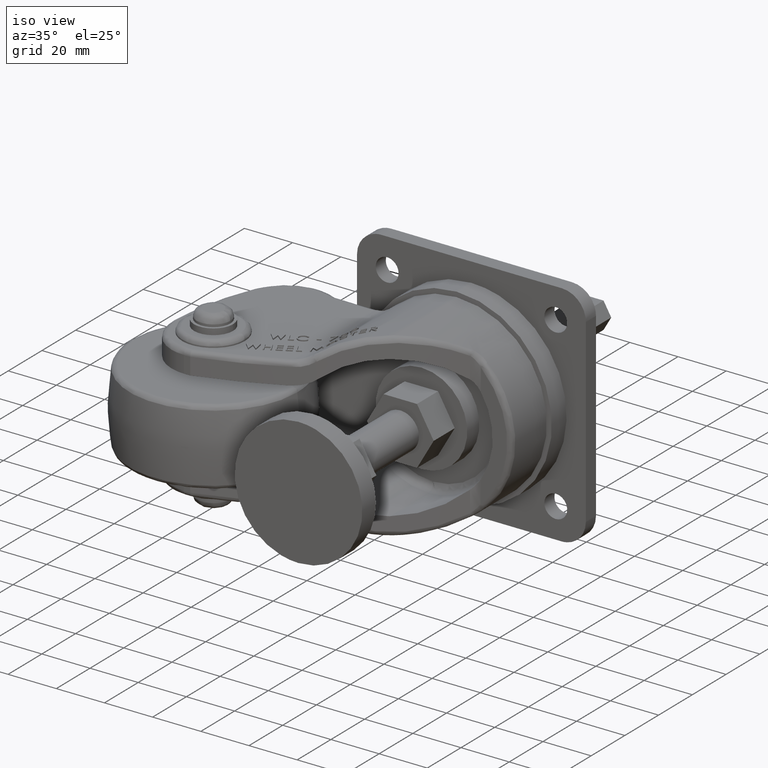
[diagram: clean part render]
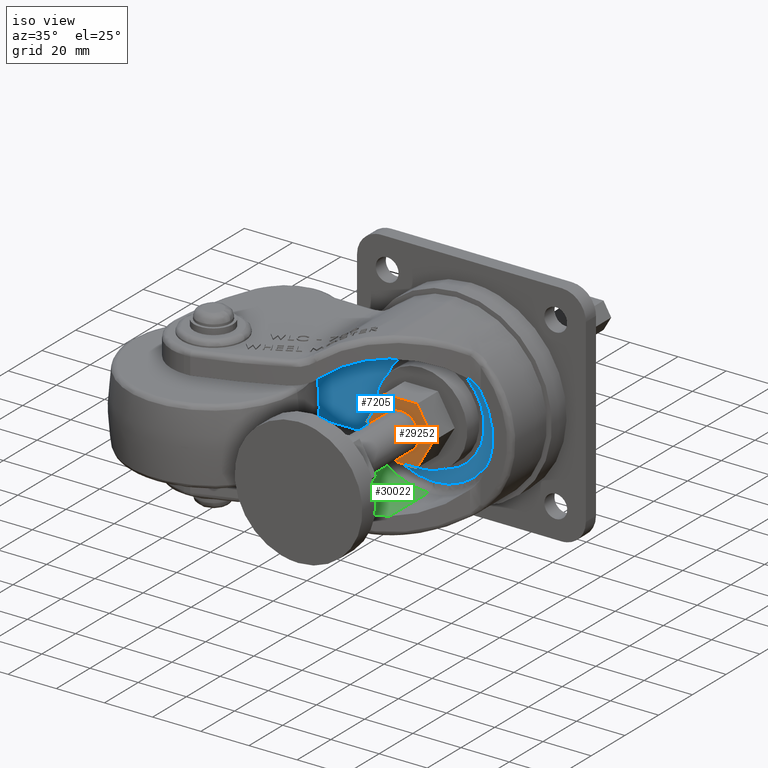
[diagram: same view with three faces highlighted in distinct colors, each labeled with its STEP entity id]
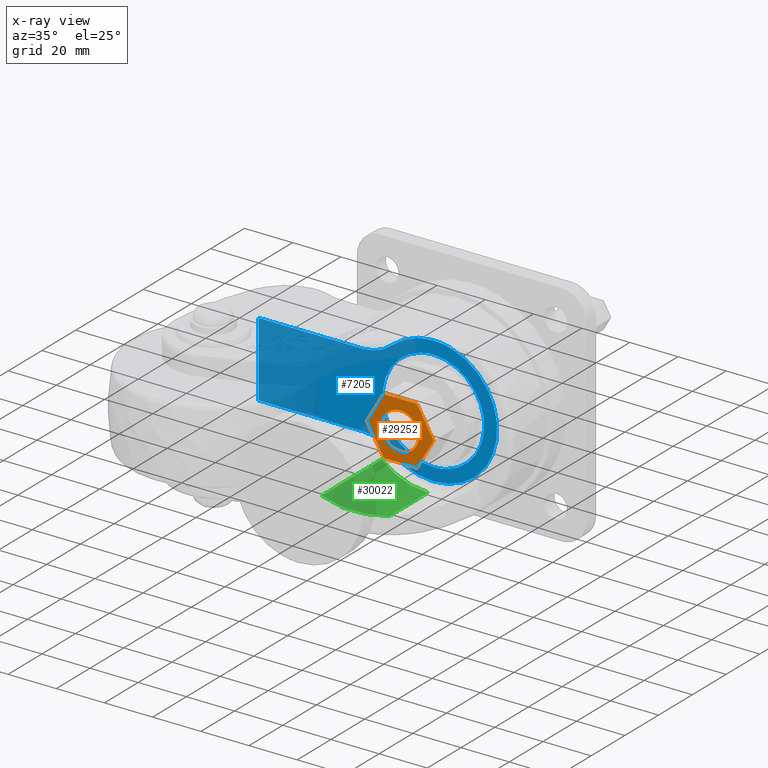
[diagram: x-ray of the same camera — body ghosted, the three highlighted faces saturated]
A machine part, iso view with three faces highlighted in distinct colors.
The next image is the same camera in x-ray (body ghosted, the three faces saturated) — at least one of them is partly hidden behind the body in this view.
Their STEP definitions:

[orange] entity #29252 — the highlighted face is a freeform B-spline surface patch.
#588 = CARTESIAN_POINT ( 'NONE',  ( 14.02268333800000022, 46.83815985700000084, 12.00000000000000000 ) ) ;
#602 = CARTESIAN_POINT ( 'NONE',  ( -13.85640645853384179, 46.83815985700000084, 0.000000000000000000 ) ) ;
#679 = CARTESIAN_POINT ( 'NONE',  ( 11.54700537800127869, 46.83815985700000084, 4.000000000000000000 ) ) ;
#1097 = CARTESIAN_POINT ( 'NONE',  ( 9.237604302401020817, 46.83815985700000084, -8.000000000000000000 ) ) ;
#1470 = B_SPLINE_CURVE_WITH_KNOTS ( 'NONE', 1,
 ( #11234, #18862 ),
 .UNSPECIFIED., .F., .F.,
 ( 2, 2 ),
 ( 0.000000000000000000, 1.000000000000000000 ),
 .UNSPECIFIED. ) ;
#2560 = VERTEX_POINT ( 'NONE', #3332 ) ;
#3225 = CARTESIAN_POINT ( 'NONE',  ( 9.237604302401020817, 46.83815985700000084, 8.000000000000000000 ) ) ;
#3332 = CARTESIAN_POINT ( 'NONE',  ( -6.928203228933590196, 46.83815985700000084, -12.00000000000000000 ) ) ;
#3483 = CARTESIAN_POINT ( 'NONE',  ( 11.54700537800127869, 46.83815985700000084, -4.000000000000000000 ) ) ;
#3587 = VERTEX_POINT ( 'NONE', #24516 ) ;
#3773 =( BOUNDED_CURVE ( )  B_SPLINE_CURVE ( 3, ( #7478, #17172, #28857, #16855 ),
 .UNSPECIFIED., .F., .F. ) 
 B_SPLINE_CURVE_WITH_KNOTS ( ( 4, 4 ),
 ( -3.141592653589795336, 0.000000000000000000 ),
 .UNSPECIFIED. ) 
 CURVE ( )  GEOMETRIC_REPRESENTATION_ITEM ( )  RATIONAL_B_SPLINE_CURVE ( ( 1.000000000000000000, 0.3333333335299309419, 0.3333333335299309419, 1.000000000000000000 ) ) 
 REPRESENTATION_ITEM ( '' )  );
#4669 = CARTESIAN_POINT ( 'NONE',  ( 15.50000000000000000, 46.83815985700000084, 7.750000000000000888 ) ) ;
#5211 = CARTESIAN_POINT ( 'NONE',  ( -6.928203228933590196, 46.83815985700000084, 12.00000000000000000 ) ) ;
#5286 = ORIENTED_EDGE ( 'NONE', *, *, #18471, .T. ) ;
#5467 = EDGE_CURVE ( 'NONE', #3587, #7559, #14193, .T. ) ;
#5968 = B_SPLINE_SURFACE_WITH_KNOTS ( 'NONE', 1, 1, ( 
 ( #25133, #20473 ),
 ( #27536, #588 ) ),
 .UNSPECIFIED., .F., .F., .F.,
 ( 2, 2 ),
 ( 2, 2 ),
 ( 0.000000000000000000, 1.000000000000000000 ),
 ( 0.000000000000000000, 1.000000000000000000 ),
 .UNSPECIFIED. ) ;
#7091 = ORIENTED_EDGE ( 'NONE', *, *, #26487, .T. ) ;
#7478 = CARTESIAN_POINT ( 'NONE',  ( -4.639314524208700181E-10, 46.83815985700000084, 7.750000002666669552 ) ) ;
#7559 = VERTEX_POINT ( 'NONE', #19305 ) ;
#7750 = B_SPLINE_CURVE_WITH_KNOTS ( 'NONE', 3,
 ( #9246, #21341, #19101, #16700 ),
 .UNSPECIFIED., .F., .F.,
 ( 4, 4 ),
 ( 0.000000000000000000, 1.000000000000000000 ),
 .UNSPECIFIED. ) ;
#7959 = EDGE_CURVE ( 'NONE', #12870, #17301, #18173, .T. ) ;
#9230 = ORIENTED_EDGE ( 'NONE', *, *, #22154, .T. ) ;
#9246 = CARTESIAN_POINT ( 'NONE',  ( -13.85640645853384179, 46.83815985700000084, 0.000000000000000000 ) ) ;
#9894 = VERTEX_POINT ( 'NONE', #11220 ) ;
#10145 = VERTEX_POINT ( 'NONE', #29712 ) ;
#11220 = CARTESIAN_POINT ( 'NONE',  ( -4.639314524208700181E-10, 46.83815985700000084, 7.750000002666669552 ) ) ;
#11234 = CARTESIAN_POINT ( 'NONE',  ( -6.928203228933590196, 46.83815985700000084, -12.00000000000000000 ) ) ;
#11876 = EDGE_CURVE ( 'NONE', #9894, #10145, #3773, .T. ) ;
#12870 = VERTEX_POINT ( 'NONE', #24026 ) ;
#14193 = B_SPLINE_CURVE_WITH_KNOTS ( 'NONE', 3,
 ( #14787, #19718, #24367, #602 ),
 .UNSPECIFIED., .F., .F.,
 ( 4, 4 ),
 ( 0.000000000000000000, 1.000000000000000000 ),
 .UNSPECIFIED. ) ;
#14787 = CARTESIAN_POINT ( 'NONE',  ( -6.928203228933590196, 46.83815985700000084, 12.00000000000000000 ) ) ;
#14830 = ORIENTED_EDGE ( 'NONE', *, *, #29241, .T. ) ;
#15867 = ORIENTED_EDGE ( 'NONE', *, *, #5467, .T. ) ;
#15887 = CARTESIAN_POINT ( 'NONE',  ( 13.85640645853384179, 46.83815985700000084, 0.000000000000000000 ) ) ;
#16700 = CARTESIAN_POINT ( 'NONE',  ( -6.928203228933590196, 46.83815985700000084, -12.00000000000000000 ) ) ;
#16855 = CARTESIAN_POINT ( 'NONE',  ( -2.119402094658419765E-09, 46.83815985700000084, -7.750000002666669552 ) ) ;
#17075 = CARTESIAN_POINT ( 'NONE',  ( 15.50000000000000178, 46.83815985700000084, -7.749999999999998224 ) ) ;
#17172 = CARTESIAN_POINT ( 'NONE',  ( -15.49999999225000558, 46.83815985700000084, 7.749999997216410641 ) ) ;
#17301 = VERTEX_POINT ( 'NONE', #22347 ) ;
#17455 = ORIENTED_EDGE ( 'NONE', *, *, #11876, .F. ) ;
#17687 = EDGE_LOOP ( 'NONE', ( #17455, #25688 ) ) ;
#17960 = ORIENTED_EDGE ( 'NONE', *, *, #7959, .T. ) ;
#18173 = B_SPLINE_CURVE_WITH_KNOTS ( 'NONE', 3,
 ( #28047, #1097, #3483, #15887 ),
 .UNSPECIFIED., .F., .F.,
 ( 4, 4 ),
 ( 0.000000000000000000, 1.000000000000000000 ),
 .UNSPECIFIED. ) ;
#18471 = EDGE_CURVE ( 'NONE', #17301, #29638, #20886, .T. ) ;
#18862 = CARTESIAN_POINT ( 'NONE',  ( 6.928203228933590196, 46.83815985700000084, -12.00000000000000000 ) ) ;
#18890 = EDGE_LOOP ( 'NONE', ( #15867, #9230, #7091, #17960, #5286, #14830 ) ) ;
#19101 = CARTESIAN_POINT ( 'NONE',  ( -9.237604302401020817, 46.83815985700000084, -8.000000000000000000 ) ) ;
#19305 = CARTESIAN_POINT ( 'NONE',  ( -13.85640645853384179, 46.83815985700000084, 0.000000000000000000 ) ) ;
#19718 = CARTESIAN_POINT ( 'NONE',  ( -9.237604302401020817, 46.83815985700000084, 8.000000000000000000 ) ) ;
#20008 = FACE_BOUND ( 'NONE', #17687, .T. ) ;
#20473 = CARTESIAN_POINT ( 'NONE',  ( 14.02268333800000022, 46.83815985700000084, -12.00000000000000000 ) ) ;
#20886 = B_SPLINE_CURVE_WITH_KNOTS ( 'NONE', 3,
 ( #22512, #679, #3225, #27783 ),
 .UNSPECIFIED., .F., .F.,
 ( 4, 4 ),
 ( 0.000000000000000000, 1.000000000000000000 ),
 .UNSPECIFIED. ) ;
#21341 = CARTESIAN_POINT ( 'NONE',  ( -11.54700537800127869, 46.83815985700000084, -4.000000000000000000 ) ) ;
#21871 = CARTESIAN_POINT ( 'NONE',  ( -4.639314524208700181E-10, 46.83815985700000084, 7.750000002666669552 ) ) ;
#22154 = EDGE_CURVE ( 'NONE', #7559, #2560, #7750, .T. ) ;
#22347 = CARTESIAN_POINT ( 'NONE',  ( 13.85640645853384179, 46.83815985700000084, 0.000000000000000000 ) ) ;
#22512 = CARTESIAN_POINT ( 'NONE',  ( 13.85640645853384179, 46.83815985700000084, 0.000000000000000000 ) ) ;
#23045 =( BOUNDED_CURVE ( )  B_SPLINE_CURVE ( 3, ( #24748, #17075, #4669, #21871 ),
 .UNSPECIFIED., .F., .F. ) 
 B_SPLINE_CURVE_WITH_KNOTS ( ( 4, 4 ),
 ( 0.000000000000000000, 1.000000000000000000 ),
 .UNSPECIFIED. ) 
 CURVE ( )  GEOMETRIC_REPRESENTATION_ITEM ( )  RATIONAL_B_SPLINE_CURVE ( ( 1.000000000000000000, 0.3333333333333333703, 0.3333333333333333703, 1.000000000000000000 ) ) 
 REPRESENTATION_ITEM ( '' )  );
#24026 = CARTESIAN_POINT ( 'NONE',  ( 6.928203228933590196, 46.83815985700000084, -12.00000000000000000 ) ) ;
#24367 = CARTESIAN_POINT ( 'NONE',  ( -11.54700537800127869, 46.83815985700000084, 4.000000000000000000 ) ) ;
#24516 = CARTESIAN_POINT ( 'NONE',  ( -6.928203228933590196, 46.83815985700000084, 12.00000000000000000 ) ) ;
#24748 = CARTESIAN_POINT ( 'NONE',  ( -2.119402094658419765E-09, 46.83815985700000084, -7.750000002666669552 ) ) ;
#25133 = CARTESIAN_POINT ( 'NONE',  ( -14.02268333800000022, 46.83815985700000084, -12.00000000000000000 ) ) ;
#25285 = FACE_OUTER_BOUND ( 'NONE', #18890, .T. ) ;
#25688 = ORIENTED_EDGE ( 'NONE', *, *, #29814, .F. ) ;
#26049 = B_SPLINE_CURVE_WITH_KNOTS ( 'NONE', 1,
 ( #31537, #5211 ),
 .UNSPECIFIED., .F., .F.,
 ( 2, 2 ),
 ( 0.000000000000000000, 1.000000000000000000 ),
 .UNSPECIFIED. ) ;
#26487 = EDGE_CURVE ( 'NONE', #2560, #12870, #1470, .T. ) ;
#27536 = CARTESIAN_POINT ( 'NONE',  ( -14.02268333800000022, 46.83815985700000084, 12.00000000000000000 ) ) ;
#27783 = CARTESIAN_POINT ( 'NONE',  ( 6.928203228933590196, 46.83815985700000084, 12.00000000000000000 ) ) ;
#28047 = CARTESIAN_POINT ( 'NONE',  ( 6.928203228933590196, 46.83815985700000084, -12.00000000000000000 ) ) ;
#28857 = CARTESIAN_POINT ( 'NONE',  ( -15.49999999403730833, 46.83815985700000084, -7.749999993641800700 ) ) ;
#29241 = EDGE_CURVE ( 'NONE', #29638, #3587, #26049, .T. ) ;
#29252 = ADVANCED_FACE ( 'NONE', ( #20008, #25285 ), #5968, .F. ) ;
#29638 = VERTEX_POINT ( 'NONE', #29727 ) ;
#29712 = CARTESIAN_POINT ( 'NONE',  ( -2.119402094658419765E-09, 46.83815985700000084, -7.750000002666669552 ) ) ;
#29727 = CARTESIAN_POINT ( 'NONE',  ( 6.928203228933590196, 46.83815985700000084, 12.00000000000000000 ) ) ;
#29814 = EDGE_CURVE ( 'NONE', #10145, #9894, #23045, .T. ) ;
#31537 = CARTESIAN_POINT ( 'NONE',  ( 6.928203228933590196, 46.83815985700000084, 12.00000000000000000 ) ) ;

[blue] entity #7205 — the highlighted face is a freeform B-spline surface patch.
#411 = B_SPLINE_CURVE_WITH_KNOTS ( 'NONE', 1,
 ( #28982, #2659 ),
 .UNSPECIFIED., .F., .F.,
 ( 2, 2 ),
 ( 0.000000000000000000, 1.000000000000000000 ),
 .UNSPECIFIED. ) ;
#451 = VERTEX_POINT ( 'NONE', #20934 ) ;
#939 = FACE_OUTER_BOUND ( 'NONE', #14410, .T. ) ;
#956 = ORIENTED_EDGE ( 'NONE', *, *, #25416, .T. ) ;
#1095 = CARTESIAN_POINT ( 'NONE',  ( -72.59971590700000377, 66.50000000000000000, 26.81800000000000139 ) ) ;
#1103 = CARTESIAN_POINT ( 'NONE',  ( 23.81853991347565369, 66.50000000000001421, -11.74479524342667247 ) ) ;
#1578 = CARTESIAN_POINT ( 'NONE',  ( -17.44333441362545045, 66.50000000008151346, 19.94943820333005036 ) ) ;
#1615 = CARTESIAN_POINT ( 'NONE',  ( -29.29163704846574845, 66.50000000004079936, 15.49999999904220083 ) ) ;
#1753 = CARTESIAN_POINT ( 'NONE',  ( -19.12733481356705667, 66.50000000000001421, -18.60521214544667501 ) ) ;
#1876 = B_SPLINE_SURFACE_WITH_KNOTS ( 'NONE', 1, 1, ( 
 ( #1095, #6196 ),
 ( #25792, #5877 ) ),
 .UNSPECIFIED., .F., .F., .F.,
 ( 2, 2 ),
 ( 2, 2 ),
 ( 0.000000000000000000, 1.000000000000000000 ),
 ( 0.000000000000000000, 1.000000000000000000 ),
 .UNSPECIFIED. ) ;
#1892 = CARTESIAN_POINT ( 'NONE',  ( 3.467431380270380004, 66.49999999999998579, 26.32945070131201959 ) ) ;
#1936 = B_SPLINE_CURVE_WITH_KNOTS ( 'NONE', 3,
 ( #21175, #30934, #28226, #28546, #26139, #11635, #6379, #9401, #9243, #19098 ),
 .UNSPECIFIED., .F., .F.,
 ( 4, 2, 2, 2, 4 ),
 ( 0.000000000000000000, 0.1796192921321382585, 0.3592385842642765170, 0.5388578763964148033, 0.7184771685285530340 ),
 .UNSPECIFIED. ) ;
#2071 = CARTESIAN_POINT ( 'NONE',  ( -25.01260960149381418, 66.49999999999998579, -15.98264661749066917 ) ) ;
#2072 = CARTESIAN_POINT ( 'NONE',  ( 21.10000001814540838, 66.50000000000001421, -2.764204061930641831 ) ) ;
#2341 = VERTEX_POINT ( 'NONE', #23442 ) ;
#2659 = CARTESIAN_POINT ( 'NONE',  ( -72.59971590297909927, 66.50000000166089364, -15.50000000491490049 ) ) ;
#2797 = CARTESIAN_POINT ( 'NONE',  ( -12.96536576748899527, 66.50000000000001421, -16.87454062071068961 ) ) ;
#2996 = CARTESIAN_POINT ( 'NONE',  ( -12.28908649596468017, 66.50000000000000000, -23.69201514659466312 ) ) ;
#3028 = CARTESIAN_POINT ( 'NONE',  ( 26.32945068101001240, 66.50000000000000000, -3.467431396982657343 ) ) ;
#3492 = CARTESIAN_POINT ( 'NONE',  ( 11.74479520394392296, 66.49999999999998579, -23.81853986030932901 ) ) ;
#3578 = B_SPLINE_CURVE_WITH_KNOTS ( 'NONE', 3,
 ( #29474, #21795, #2996, #7634, #12706, #22429 ),
 .UNSPECIFIED., .F., .F.,
 ( 4, 2, 4 ),
 ( 0.000000000000000000, 0.3592385842608190050, 0.7184771685216380099 ),
 .UNSPECIFIED. ) ;
#3626 = VERTEX_POINT ( 'NONE', #7631 ) ;
#3646 = CARTESIAN_POINT ( 'NONE',  ( 21.06957743414927720, 66.50000000000000000, 16.16588886243466661 ) ) ;
#4459 = EDGE_CURVE ( 'NONE', #30968, #451, #3578, .T. ) ;
#4559 = B_SPLINE_CURVE_WITH_KNOTS ( 'NONE', 3,
 ( #24473, #9377, #5180, #26868, #2797, #29578, #12505, #10125, #19827, #7739, #17430, #24790, #22383, #20749, #5957, #30048, #20285, #10586 ),
 .UNSPECIFIED., .F., .F.,
 ( 4, 2, 2, 2, 2, 2, 2, 2, 4 ),
 ( 0.000000000000000000, 0.3926990816987245836, 0.7853981633974490562, 1.178097245096173529, 1.570796326794898112, 1.963495408493622474, 2.356194490192347057, 2.748893571891070753, 3.141592653589795336 ),
 .UNSPECIFIED. ) ;
#5180 = CARTESIAN_POINT ( 'NONE',  ( -5.520828837499231589, 66.50000000000000000, -20.55167334840402305 ) ) ;
#5203 = ORIENTED_EDGE ( 'NONE', *, *, #17362, .T. ) ;
#5517 = VERTEX_POINT ( 'NONE', #15091 ) ;
#5877 = CARTESIAN_POINT ( 'NONE',  ( 27.09459829500000083, 66.50000000000000000, -26.81800000000000139 ) ) ;
#5891 = CARTESIAN_POINT ( 'NONE',  ( -2.469144102142569922E-09, 66.50000000008151346, 26.49999999653990201 ) ) ;
#5957 = CARTESIAN_POINT ( 'NONE',  ( -10.62841207404592581, 66.50000000000001421, 18.43604309296931376 ) ) ;
#6049 = CARTESIAN_POINT ( 'NONE',  ( 25.14707551640842453, 66.50000000000000000, 8.537426663597290855 ) ) ;
#6071 = EDGE_LOOP ( 'NONE', ( #18454, #22285 ) ) ;
#6196 = CARTESIAN_POINT ( 'NONE',  ( 27.09459829500000083, 66.50000000000000000, 26.81800000000000139 ) ) ;
#6379 = CARTESIAN_POINT ( 'NONE',  ( -25.01260953503093276, 66.50000000000000000, 15.98264658173333785 ) ) ;
#6380 = CARTESIAN_POINT ( 'NONE',  ( -3.732234895185195434E-09, 66.50000000000000000, 21.10000000757599992 ) ) ;
#6693 = CARTESIAN_POINT ( 'NONE',  ( -17.44333441362545045, 66.50000000008151346, -19.94943820333005036 ) ) ;
#7205 = ADVANCED_FACE ( 'NONE', ( #939, #13208 ), #1876, .T. ) ;
#7631 = CARTESIAN_POINT ( 'NONE',  ( -3.732234895185195434E-09, 66.50000000000000000, 21.10000000757599992 ) ) ;
#7634 = CARTESIAN_POINT ( 'NONE',  ( -6.343674369676421954, 66.49999999999998579, -25.92471820103734004 ) ) ;
#7739 = CARTESIAN_POINT ( 'NONE',  ( -21.10000003296026705, 66.50000000000000000, 2.764204061930633394 ) ) ;
#7880 = ORIENTED_EDGE ( 'NONE', *, *, #22370, .T. ) ;
#7954 = VERTEX_POINT ( 'NONE', #27734 ) ;
#8072 = ORIENTED_EDGE ( 'NONE', *, *, #24989, .T. ) ;
#8596 = CARTESIAN_POINT ( 'NONE',  ( 22.99831202167502298, 66.50000000000001421, -13.27933343243464037 ) ) ;
#8754 = CARTESIAN_POINT ( 'NONE',  ( -6.343674635527949413, 66.50000000000000000, 25.92471834406666886 ) ) ;
#8778 = B_SPLINE_CURVE_WITH_KNOTS ( 'NONE', 3,
 ( #5891, #28061, #8754, #13221, #18453, #1578 ),
 .UNSPECIFIED., .F., .F.,
 ( 4, 2, 4 ),
 ( 0.000000000000000000, 0.3592385842608190050, 0.7184771685216380099 ),
 .UNSPECIFIED. ) ;
#8923 = CARTESIAN_POINT ( 'NONE',  ( 12.96536548682260026, 66.49999999999998579, 16.87454062071068250 ) ) ;
#9243 = CARTESIAN_POINT ( 'NONE',  ( -28.21101438688291196, 66.50000000000000000, 15.49999999636000325 ) ) ;
#9377 = CARTESIAN_POINT ( 'NONE',  ( -2.764204052571942682, 66.50000000000000000, -21.10000002272799691 ) ) ;
#9401 = CARTESIAN_POINT ( 'NONE',  ( -27.13908433870676973, 66.50000000000001421, 15.59652931343467053 ) ) ;
#9402 = CARTESIAN_POINT ( 'NONE',  ( 20.55167328125787662, 66.50000000000000000, -5.520828802822578929 ) ) ;
#9565 = CARTESIAN_POINT ( 'NONE',  ( 2.764204037756956556, 66.50000000000000000, -21.10000002272800401 ) ) ;
#10100 = ORIENTED_EDGE ( 'NONE', *, *, #17680, .T. ) ;
#10125 = CARTESIAN_POINT ( 'NONE',  ( -20.55167329607270332, 66.50000000000000000, -5.520828802822663306 ) ) ;
#10509 = CARTESIAN_POINT ( 'NONE',  ( 8.537426803070596648, 66.50000000000000000, -25.14707540353067472 ) ) ;
#10586 = CARTESIAN_POINT ( 'NONE',  ( -3.732234895185195434E-09, 66.50000000000000000, 21.10000000757599992 ) ) ;
#10827 = CARTESIAN_POINT ( 'NONE',  ( 26.49999997082171532, 66.50000000000000000, 1.735815360165313459 ) ) ;
#10979 = CARTESIAN_POINT ( 'NONE',  ( 16.16588894254570619, 66.50000000000000000, 21.06957736171200679 ) ) ;
#11635 = CARTESIAN_POINT ( 'NONE',  ( -23.97517049611921536, 66.50000000000000000, 16.26912863310533908 ) ) ;
#11791 = CARTESIAN_POINT ( 'NONE',  ( -23.97517049611920825, 66.50000000000000000, -16.26912866886267395 ) ) ;
#11792 = CARTESIAN_POINT ( 'NONE',  ( 12.96536575267412594, 66.50000000000001421, -16.87454047768139276 ) ) ;
#11909 = VERTEX_POINT ( 'NONE', #26287 ) ;
#12106 = CARTESIAN_POINT ( 'NONE',  ( 5.520828822684319626, 66.50000000000000000, -20.55167320537470488 ) ) ;
#12206 = ORIENTED_EDGE ( 'NONE', *, *, #16535, .T. ) ;
#12505 = CARTESIAN_POINT ( 'NONE',  ( -18.43604297404424486, 66.50000000000000000, -10.62841201732933527 ) ) ;
#12690 = CARTESIAN_POINT ( 'NONE',  ( -72.59971590297909927, 66.50000000166089364, -15.50000000491490049 ) ) ;
#12706 = CARTESIAN_POINT ( 'NONE',  ( -3.175408803811106573, 66.50000000000000000, -26.49999998685600744 ) ) ;
#12741 = CARTESIAN_POINT ( 'NONE',  ( 13.27933338870489699, 66.50000000000001421, 22.99831204545600016 ) ) ;
#12903 = CARTESIAN_POINT ( 'NONE',  ( -29.29163704846574845, 66.50000000004079936, -15.49999999904220083 ) ) ;
#13208 = FACE_BOUND ( 'NONE', #6071, .T. ) ;
#13217 = CARTESIAN_POINT ( 'NONE',  ( 16.16588894254571684, 66.50000000000000000, -21.06957736171199613 ) ) ;
#13221 = CARTESIAN_POINT ( 'NONE',  ( -12.28908623011315449, 66.49999999999998579, 23.69201500356532719 ) ) ;
#13367 = CARTESIAN_POINT ( 'NONE',  ( 19.96573663171752244, 66.49999999999998579, 17.51092291077063479 ) ) ;
#13845 = CARTESIAN_POINT ( 'NONE',  ( 1.735815315151411520, 66.50000000000000000, 26.49999998685601099 ) ) ;
#14410 = EDGE_LOOP ( 'NONE', ( #7880, #20578, #29909, #12206, #10100, #8072, #5203, #956 ) ) ;
#14558 = B_SPLINE_CURVE_WITH_KNOTS ( 'NONE', 1,
 ( #12690, #20775 ),
 .UNSPECIFIED., .F., .F.,
 ( 2, 2 ),
 ( 0.000000000000000000, 1.000000000000000000 ),
 .UNSPECIFIED. ) ;
#14649 = CARTESIAN_POINT ( 'NONE',  ( 21.10000001814540127, 66.50000000000000000, 2.764204061930640055 ) ) ;
#15091 = CARTESIAN_POINT ( 'NONE',  ( -72.59971590297909927, 66.50000000166089364, 15.50000000491490049 ) ) ;
#15276 = CARTESIAN_POINT ( 'NONE',  ( -2.469144102142569922E-09, 66.50000000008151346, -26.49999999653990201 ) ) ;
#15435 = CARTESIAN_POINT ( 'NONE',  ( 25.65216924900784079, 66.50000000000000000, -6.872355667745346786 ) ) ;
#15590 = CARTESIAN_POINT ( 'NONE',  ( 1.735815315151493010, 66.50000000000000000, -26.49999998685600744 ) ) ;
#15743 = CARTESIAN_POINT ( 'NONE',  ( 23.81853978054987309, 66.49999999999998579, 11.74479524342671866 ) ) ;
#15820 = B_SPLINE_CURVE_WITH_KNOTS ( 'NONE', 3,
 ( #6380, #16066, #21018, #30776, #8923, #18622, #30935, #21500, #14649, #2072, #9402, #31257, #21970, #11792, #19732, #12106, #9565, #26778 ),
 .UNSPECIFIED., .F., .F.,
 ( 4, 2, 2, 2, 2, 2, 2, 2, 4 ),
 ( 0.000000000000000000, 0.3926990816987243060, 0.7853981633974488341, 1.178097245096173307, 1.570796326794898112, 1.963495408493622474, 2.356194490192346613, 2.748893571891070753, 3.141592653589795336 ),
 .UNSPECIFIED. ) ;
#15893 = CARTESIAN_POINT ( 'NONE',  ( 13.27933338870488100, 66.49999999999998579, -22.99831204545601082 ) ) ;
#16049 = CARTESIAN_POINT ( 'NONE',  ( -2.469144102142569922E-09, 66.50000000008151346, 26.49999999653990201 ) ) ;
#16066 = CARTESIAN_POINT ( 'NONE',  ( 2.764204037757084897, 66.50000000000000000, 21.10000002272800401 ) ) ;
#16381 = CARTESIAN_POINT ( 'NONE',  ( -29.29163704846574845, 66.50000000004079936, -15.49999999904220083 ) ) ;
#16535 = EDGE_CURVE ( 'NONE', #451, #27881, #18326, .T. ) ;
#17362 = EDGE_CURVE ( 'NONE', #7954, #5517, #31275, .T. ) ;
#17430 = CARTESIAN_POINT ( 'NONE',  ( -20.55167329607272464, 66.50000000000001421, 5.520828802822586923 ) ) ;
#17554 = VERTEX_POINT ( 'NONE', #12903 ) ;
#17680 = EDGE_CURVE ( 'NONE', #27881, #11909, #8778, .T. ) ;
#17824 = CARTESIAN_POINT ( 'NONE',  ( 19.96573649879175960, 66.50000000000000000, -17.51092291077065966 ) ) ;
#18140 = CARTESIAN_POINT ( 'NONE',  ( 26.32945081393576814, 66.50000000000000000, 3.467431396982650238 ) ) ;
#18326 = B_SPLINE_CURVE_WITH_KNOTS ( 'NONE', 3,
 ( #15276, #15590, #25339, #25026, #10509, #3492, #15893, #13217, #20211, #17824, #22940, #8596, #1103, #27582, #15435, #3028, #25186, #10827, #18140, #27898, #6049, #15743, #25494, #3646, #13367, #23098, #10979, #12741, #22465, #28528, #28207, #1892, #13845, #16049 ),
 .UNSPECIFIED., .F., .F.,
 ( 4, 2, 2, 2, 2, 2, 2, 2, 2, 2, 2, 2, 2, 2, 2, 2, 4 ),
 ( 0.000000000000000000, 0.1963495408493621530, 0.3926990816987243060, 0.5890486225480864313, 0.7853981633974486121, 0.9817477042468109039, 1.178097245096172863, 1.374446785945535154, 1.570796326794897224, 1.767145867644259516, 1.963495408493621808, 2.159844949342983877, 2.356194490192345725, 2.552544031041708017, 2.748893571891070753, 2.945243112740433045, 3.141592653589795336 ),
 .UNSPECIFIED. ) ;
#18453 = CARTESIAN_POINT ( 'NONE',  ( -15.05285803396271582, 66.50000000000000000, 22.03961624573865663 ) ) ;
#18454 = ORIENTED_EDGE ( 'NONE', *, *, #28256, .T. ) ;
#18622 = CARTESIAN_POINT ( 'NONE',  ( 16.87454065269486847, 66.50000000000000000, 12.96536557710531312 ) ) ;
#18974 = VERTEX_POINT ( 'NONE', #23267 ) ;
#19098 = CARTESIAN_POINT ( 'NONE',  ( -29.29163704846574845, 66.50000000004079936, 15.49999999904220083 ) ) ;
#19419 = B_SPLINE_CURVE_WITH_KNOTS ( 'NONE', 3,
 ( #16381, #21017, #25983, #2071, #11791, #26296, #23433, #1753, #31099, #6693 ),
 .UNSPECIFIED., .F., .F.,
 ( 4, 2, 2, 2, 4 ),
 ( 0.000000000000000000, 0.1796192921321382585, 0.3592385842642765170, 0.5388578763964148033, 0.7184771685285530340 ),
 .UNSPECIFIED. ) ;
#19732 = CARTESIAN_POINT ( 'NONE',  ( 10.62841205923106713, 66.50000000000000000, -18.43604309296931376 ) ) ;
#19827 = CARTESIAN_POINT ( 'NONE',  ( -21.10000003296026705, 66.50000000000001421, -2.764204061930632950 ) ) ;
#20211 = CARTESIAN_POINT ( 'NONE',  ( 17.51092299076718461, 66.50000000000000000, -19.96573650300533487 ) ) ;
#20285 = CARTESIAN_POINT ( 'NONE',  ( -2.764204052571814341, 66.50000000000000000, 21.10000002272799691 ) ) ;
#20578 = ORIENTED_EDGE ( 'NONE', *, *, #24948, .T. ) ;
#20718 = CARTESIAN_POINT ( 'NONE',  ( -72.59971590297909927, 66.50000000166089364, 15.50000000491490049 ) ) ;
#20749 = CARTESIAN_POINT ( 'NONE',  ( -12.96536550163746782, 66.50000000000001421, 16.87454047768138565 ) ) ;
#20775 = CARTESIAN_POINT ( 'NONE',  ( -29.29163704846574845, 66.50000000004079936, -15.49999999904220083 ) ) ;
#20934 = CARTESIAN_POINT ( 'NONE',  ( -2.469144102142569922E-09, 66.50000000008151346, -26.49999999653990201 ) ) ;
#21017 = CARTESIAN_POINT ( 'NONE',  ( -28.21101438688290486, 66.50000000000000000, -15.49999999636000325 ) ) ;
#21018 = CARTESIAN_POINT ( 'NONE',  ( 5.520828822684377357, 66.50000000000001421, 20.55167334840400883 ) ) ;
#21175 = CARTESIAN_POINT ( 'NONE',  ( -17.44333441362545045, 66.50000000008151346, 19.94943820333005036 ) ) ;
#21500 = CARTESIAN_POINT ( 'NONE',  ( 20.55167328125784820, 66.50000000000000000, 5.520828802822657977 ) ) ;
#21795 = CARTESIAN_POINT ( 'NONE',  ( -15.05285803396270161, 66.50000000000000000, -22.03961624573866374 ) ) ;
#21970 = CARTESIAN_POINT ( 'NONE',  ( 16.87454038684334634, 66.50000000000001421, -12.96536572013461530 ) ) ;
#22285 = ORIENTED_EDGE ( 'NONE', *, *, #30434, .T. ) ;
#22370 = EDGE_CURVE ( 'NONE', #18974, #17554, #14558, .T. ) ;
#22383 = CARTESIAN_POINT ( 'NONE',  ( -16.87454066750972714, 66.50000000000001421, 12.96536572013461708 ) ) ;
#22429 = CARTESIAN_POINT ( 'NONE',  ( -2.469144102142569922E-09, 66.50000000008151346, -26.49999999653990201 ) ) ;
#22465 = CARTESIAN_POINT ( 'NONE',  ( 11.74479533686969646, 66.50000000000000000, 23.81853986030932191 ) ) ;
#22940 = CARTESIAN_POINT ( 'NONE',  ( 21.06957743414924522, 66.50000000000000000, -16.16588893394936122 ) ) ;
#23098 = CARTESIAN_POINT ( 'NONE',  ( 17.51092285784141467, 66.50000000000001421, 19.96573650300536684 ) ) ;
#23267 = CARTESIAN_POINT ( 'NONE',  ( -72.59971590297909927, 66.50000000166089364, -15.50000000491490049 ) ) ;
#23433 = CARTESIAN_POINT ( 'NONE',  ( -20.98232152910498272, 66.50000000000000000, -17.49615597240133624 ) ) ;
#23442 = CARTESIAN_POINT ( 'NONE',  ( -8.239387221415520312E-09, 66.50000000000000000, -21.10000000000000142 ) ) ;
#24473 = CARTESIAN_POINT ( 'NONE',  ( -8.239387221415520312E-09, 66.50000000000000000, -21.10000000000000142 ) ) ;
#24790 = CARTESIAN_POINT ( 'NONE',  ( -18.43604297404421288, 66.50000000000000000, 10.62841201732941165 ) ) ;
#24948 = EDGE_CURVE ( 'NONE', #17554, #30968, #19419, .T. ) ;
#24989 = EDGE_CURVE ( 'NONE', #11909, #7954, #1936, .T. ) ;
#25008 = CARTESIAN_POINT ( 'NONE',  ( -2.469144102142569922E-09, 66.50000000008151346, 26.49999999653990201 ) ) ;
#25026 = CARTESIAN_POINT ( 'NONE',  ( 6.872355629275468836, 66.50000000000000000, -25.65216911974933467 ) ) ;
#25186 = CARTESIAN_POINT ( 'NONE',  ( 26.49999997082172243, 66.50000000000000000, -1.735815360165313903 ) ) ;
#25339 = CARTESIAN_POINT ( 'NONE',  ( 3.467431380270455055, 66.50000000000000000, -26.32945077282667867 ) ) ;
#25416 = EDGE_CURVE ( 'NONE', #5517, #18974, #411, .T. ) ;
#25494 = CARTESIAN_POINT ( 'NONE',  ( 22.99831202167498745, 66.50000000000000000, 13.27933350394932788 ) ) ;
#25792 = CARTESIAN_POINT ( 'NONE',  ( -72.59971590700000377, 66.50000000000000000, -26.81800000000000139 ) ) ;
#25983 = CARTESIAN_POINT ( 'NONE',  ( -27.13908427224389541, 66.50000000000000000, -15.59652927767733743 ) ) ;
#26139 = CARTESIAN_POINT ( 'NONE',  ( -21.95188874537087287, 66.50000000000000000, 17.02893935575067275 ) ) ;
#26287 = CARTESIAN_POINT ( 'NONE',  ( -17.44333441362545045, 66.50000000008151346, 19.94943820333005036 ) ) ;
#26296 = CARTESIAN_POINT ( 'NONE',  ( -21.95188874537087642, 66.50000000000000000, -17.02893931999333432 ) ) ;
#26778 = CARTESIAN_POINT ( 'NONE',  ( -8.239387221415520312E-09, 66.50000000000000000, -21.10000000000000142 ) ) ;
#26868 = CARTESIAN_POINT ( 'NONE',  ( -10.62841207404587074, 66.50000000000001421, -18.43604294993999204 ) ) ;
#27582 = CARTESIAN_POINT ( 'NONE',  ( 25.14707538348265459, 66.50000000000001421, -8.537426663597329934 ) ) ;
#27734 = CARTESIAN_POINT ( 'NONE',  ( -29.29163704846574845, 66.50000000004079936, 15.49999999904220083 ) ) ;
#27881 = VERTEX_POINT ( 'NONE', #25008 ) ;
#27898 = CARTESIAN_POINT ( 'NONE',  ( 25.65216911608206729, 66.50000000000000000, 6.872355667745353003 ) ) ;
#28061 = CARTESIAN_POINT ( 'NONE',  ( -3.175408803811117231, 66.50000000000000000, 26.49999998685599678 ) ) ;
#28207 = CARTESIAN_POINT ( 'NONE',  ( 6.872355629275538114, 66.50000000000000000, 25.65216919126398665 ) ) ;
#28226 = CARTESIAN_POINT ( 'NONE',  ( -19.12733474710418236, 66.50000000000000000, 18.60521210968934014 ) ) ;
#28256 = EDGE_CURVE ( 'NONE', #3626, #2341, #15820, .T. ) ;
#28528 = CARTESIAN_POINT ( 'NONE',  ( 8.537426670144826701, 66.50000000000000000, 25.14707540353068538 ) ) ;
#28546 = CARTESIAN_POINT ( 'NONE',  ( -20.98232159556785703, 66.49999999999998579, 17.49615600815867111 ) ) ;
#28982 = CARTESIAN_POINT ( 'NONE',  ( -72.59971590297909927, 66.50000000166089364, 15.50000000491490049 ) ) ;
#29474 = CARTESIAN_POINT ( 'NONE',  ( -17.44333441362545045, 66.50000000008151346, -19.94943820333005036 ) ) ;
#29578 = CARTESIAN_POINT ( 'NONE',  ( -16.87454040165820501, 66.50000000000002842, -12.96536557710531490 ) ) ;
#29909 = ORIENTED_EDGE ( 'NONE', *, *, #4459, .T. ) ;
#30048 = CARTESIAN_POINT ( 'NONE',  ( -5.520828837499179187, 66.50000000000000000, 20.55167320537469422 ) ) ;
#30434 = EDGE_CURVE ( 'NONE', #2341, #3626, #4559, .T. ) ;
#30445 = CARTESIAN_POINT ( 'NONE',  ( -17.44333441362545045, 66.50000000008151346, -19.94943820333005036 ) ) ;
#30776 = CARTESIAN_POINT ( 'NONE',  ( 10.62841205923101029, 66.49999999999997158, 18.43604294993999559 ) ) ;
#30934 = CARTESIAN_POINT ( 'NONE',  ( -18.25683689461601134, 66.50000000000000000, 19.23813019353866594 ) ) ;
#30935 = CARTESIAN_POINT ( 'NONE',  ( 18.43604295922938618, 66.50000000000000000, 10.62841201732934415 ) ) ;
#30968 = VERTEX_POINT ( 'NONE', #30445 ) ;
#31099 = CARTESIAN_POINT ( 'NONE',  ( -18.25683689461600778, 66.50000000000000000, -19.23813019353866949 ) ) ;
#31257 = CARTESIAN_POINT ( 'NONE',  ( 18.43604295922935776, 66.50000000000001421, -10.62841201732941521 ) ) ;
#31275 = B_SPLINE_CURVE_WITH_KNOTS ( 'NONE', 1,
 ( #1615, #20718 ),
 .UNSPECIFIED., .F., .F.,
 ( 2, 2 ),
 ( 0.000000000000000000, 1.000000000000000000 ),
 .UNSPECIFIED. ) ;

[green] entity #30022 — the highlighted face is a freeform B-spline surface patch.
#2075 = CARTESIAN_POINT ( 'NONE',  ( -16.87064894934865933, 29.28295021711289792, -24.20426604047095154 ) ) ;
#2082 = FACE_OUTER_BOUND ( 'NONE', #2651, .T. ) ;
#2651 = EDGE_LOOP ( 'NONE', ( #10391, #20416, #31175, #27912 ) ) ;
#2861 = CARTESIAN_POINT ( 'NONE',  ( -10.21942393195946508, 33.35865938739124203, -27.67343583668343499 ) ) ;
#2958 = EDGE_CURVE ( 'NONE', #18386, #13616, #26120, .T. ) ;
#3748 = B_SPLINE_CURVE_WITH_KNOTS ( 'NONE', 1,
 ( #26884, #9829 ),
 .UNSPECIFIED., .F., .F.,
 ( 2, 2 ),
 ( -1.000000000000000000, 0.000000000000000000 ),
 .UNSPECIFIED. ) ;
#3985 = CARTESIAN_POINT ( 'NONE',  ( -10.77797617828908194, 33.00227977491186948, -27.46225751909072699 ) ) ;
#4149 = CARTESIAN_POINT ( 'NONE',  ( -19.41805151298797227, 63.50000000000000000, -22.20786517067648091 ) ) ;
#4618 = CARTESIAN_POINT ( 'NONE',  ( -12.13329473170531969, 32.14869322656774386, -26.89302837687790060 ) ) ;
#4936 = CARTESIAN_POINT ( 'NONE',  ( -5.038769696362772166, 36.78811384121315342, -29.06649200212829243 ) ) ;
#5098 = CARTESIAN_POINT ( 'NONE',  ( -5.081032246668375052, 36.75919128247592482, -29.05913459426213663 ) ) ;
#5403 = CARTESIAN_POINT ( 'NONE',  ( -6.751583545460270841, 35.62786897883905368, -28.72033872442299085 ) ) ;
#5825 = CARTESIAN_POINT ( 'NONE',  ( -7.221361458575347392, 63.50000000000000000, -29.49999999703775444 ) ) ;
#5931 = CARTESIAN_POINT ( 'NONE',  ( -6.050551141202269869E-09, 63.50000000069090333, -29.50000000006114576 ) ) ;
#7179 = CARTESIAN_POINT ( 'NONE',  ( -7.174367809228586523, 35.34567440991710896, -28.61756730093616241 ) ) ;
#7336 = CARTESIAN_POINT ( 'NONE',  ( -8.427009394285681410, 34.51620338076592276, -28.28395940124796581 ) ) ;
#9084 = CARTESIAN_POINT ( 'NONE',  ( -19.41805150297594906, 27.81522370650059628, -22.20786517049925024 ) ) ;
#9253 = CARTESIAN_POINT ( 'NONE',  ( -13.98174570444486697, 63.50000000000000000, -26.96124715581351339 ) ) ;
#9270 =( BOUNDED_CURVE ( )  B_SPLINE_CURVE ( 3, ( #22407, #5825, #24814, #27209 ),
 .UNSPECIFIED., .F., .F. ) 
 B_SPLINE_CURVE_WITH_KNOTS ( ( 4, 4 ),
 ( -0.7184771684989590401, 0.000000000000000000 ),
 .UNSPECIFIED. ) 
 CURVE ( )  GEOMETRIC_REPRESENTATION_ITEM ( )  RATIONAL_B_SPLINE_CURVE ( ( 1.000000000000000000, 0.9574431863963452916, 0.9574431863963452916, 1.000000000000000000 ) ) 
 REPRESENTATION_ITEM ( '' )  );
#9405 = CARTESIAN_POINT ( 'NONE',  ( -14.14282786451954621, 30.90940020062025440, -25.90392815830978890 ) ) ;
#9721 = CARTESIAN_POINT ( 'NONE',  ( -9.241120940767030945, 33.98603959815127240, -28.02782778214323756 ) ) ;
#9829 = CARTESIAN_POINT ( 'NONE',  ( -19.41805150297594906, 27.81522370650059628, -22.20786517049925024 ) ) ;
#10033 = CARTESIAN_POINT ( 'NONE',  ( -10.05888730020589783, 33.46150634623481324, -27.73209312817103722 ) ) ;
#10391 = ORIENTED_EDGE ( 'NONE', *, *, #10699, .T. ) ;
#10699 = EDGE_CURVE ( 'NONE', #18386, #19243, #9270, .T. ) ;
#11164 = CARTESIAN_POINT ( 'NONE',  ( -2.462020410062754750E-08, 40.35278656966605126, -29.49999999862954780 ) ) ;
#11290 = EDGE_CURVE ( 'NONE', #31160, #13616, #11534, .T. ) ;
#11534 = B_SPLINE_CURVE_WITH_KNOTS ( 'NONE', 3,
 ( #9084, #18785, #23909, #2075, #11795, #28551, #16702, #16385, #11955, #31260, #26143, #11640, #9405, #21503, #4618, #16069, #25823, #3985, #13707, #2861, #26780, #22292, #10033, #29494, #9721, #7336, #7179, #5403, #17497, #17025, #26940, #29334, #24855, #5098, #31574, #4936, #14651, #14806, #22449 ),
 .UNSPECIFIED., .F., .F.,
 ( 4, 2, 2, 1, 1, 1, 2, 2, 2, 2, 1, 1, 1, 1, 2, 2, 2, 2, 1, 1, 1, 1, 2, 2, 4 ),
 ( -1.000000000000000000, -0.8750000000000026645, -0.8125000000000041078, -0.7812500000000046629, -0.7656250000000048850, -0.7578125000000049960, -0.7539062500000049960, -0.7500000000000049960, -0.6250000000000000000, -0.5624999999999975575, -0.5312499999999962252, -0.5156249999999957812, -0.5078124999999955591, -0.5039062499999954481, -0.5019531249999955591, -0.4999999999999956701, -0.3749999999999890088, -0.3124999999999855671, -0.2812499999999841238, -0.2656249999999834577, -0.2578124999999830136, -0.2539062499999827915, -0.2519531249999827915, -0.2499999999999829026, 0.000000000000000000 ),
 .UNSPECIFIED. ) ;
#11640 = CARTESIAN_POINT ( 'NONE',  ( -14.93032101520647892, 30.43560824485125949, -25.44280407312885828 ) ) ;
#11795 = CARTESIAN_POINT ( 'NONE',  ( -16.48713762256861060, 29.50827922686646332, -24.46714396775203326 ) ) ;
#11955 = CARTESIAN_POINT ( 'NONE',  ( -15.08254475696052666, 30.34413009482581103, -25.35296453119742921 ) ) ;
#13616 = VERTEX_POINT ( 'NONE', #11164 ) ;
#13707 = CARTESIAN_POINT ( 'NONE',  ( -10.40618603753955718, 33.23924611949554730, -27.60405693375047065 ) ) ;
#14651 = CARTESIAN_POINT ( 'NONE',  ( -3.444200951749508466, 37.87984012067751394, -29.34221722108613406 ) ) ;
#14663 =( BOUNDED_SURFACE ( )  B_SPLINE_SURFACE ( 1, 3, ( 
 ( #21352, #31112, #28086, #30793 ),
 ( #16077, #25832, #9253, #4149 ) ),
 .UNSPECIFIED., .F., .F., .F. ) 
 B_SPLINE_SURFACE_WITH_KNOTS ( ( 2, 2 ),
 ( 4, 4 ),
 ( 0.000000000000000000, 1.000000000000000000 ),
 ( 0.000000000000000000, 1.000000000000000000 ),
 .UNSPECIFIED. ) 
 GEOMETRIC_REPRESENTATION_ITEM ( )  RATIONAL_B_SPLINE_SURFACE ( (
 ( 1.000000000000000000, 0.9574431863963454026, 0.9574431863963454026, 1.000000000000000000),
 ( 1.000000000000000000, 0.9574431863963454026, 0.9574431863963454026, 1.000000000000000000) ) ) 
 REPRESENTATION_ITEM ( '' )  SURFACE ( )  );
#14806 = CARTESIAN_POINT ( 'NONE',  ( -1.761681287434445631, 39.06524336793770402, -29.49999999927733896 ) ) ;
#16069 = CARTESIAN_POINT ( 'NONE',  ( -11.72076406926044889, 32.40675630923934136, -27.07542362304890915 ) ) ;
#16077 = CARTESIAN_POINT ( 'NONE',  ( -1.210110228240453808E-08, 63.50000000000000000, -29.50000000000000000 ) ) ;
#16385 = CARTESIAN_POINT ( 'NONE',  ( -15.25793486519763498, 30.23892539891617659, -25.24815382563968313 ) ) ;
#16702 = CARTESIAN_POINT ( 'NONE',  ( -15.60660555306937525, 30.03040836542330183, -25.03555673543445792 ) ) ;
#17025 = CARTESIAN_POINT ( 'NONE',  ( -5.787420776359275543, 36.27778035182622318, -28.92820145175284097 ) ) ;
#17497 = CARTESIAN_POINT ( 'NONE',  ( -6.110036280093713579, 36.05971717102925567, -28.86113980528434553 ) ) ;
#18208 = CARTESIAN_POINT ( 'NONE',  ( -2.462020410062754750E-08, 40.35278656966605126, -29.49999999862954780 ) ) ;
#18386 = VERTEX_POINT ( 'NONE', #5931 ) ;
#18785 = CARTESIAN_POINT ( 'NONE',  ( -18.72447550687441264, 28.20820985386970037, -22.81431223397498087 ) ) ;
#19243 = VERTEX_POINT ( 'NONE', #25938 ) ;
#19441 = EDGE_CURVE ( 'NONE', #19243, #31160, #3748, .T. ) ;
#20416 = ORIENTED_EDGE ( 'NONE', *, *, #19441, .T. ) ;
#21352 = CARTESIAN_POINT ( 'NONE',  ( -1.210110228240453808E-08, 27.60111503899999974, -29.50000000000000000 ) ) ;
#21503 = CARTESIAN_POINT ( 'NONE',  ( -13.35318910460625474, 31.39151144102311619, -26.32013689251213151 ) ) ;
#22116 = CARTESIAN_POINT ( 'NONE',  ( -19.41805150297594906, 27.81522370650059628, -22.20786517049925024 ) ) ;
#22292 = CARTESIAN_POINT ( 'NONE',  ( -10.08566969485983478, 33.44433658229687012, -27.72236407296428595 ) ) ;
#22407 = CARTESIAN_POINT ( 'NONE',  ( -6.050551141202269869E-09, 63.50000000069090333, -29.50000000006114576 ) ) ;
#22449 = CARTESIAN_POINT ( 'NONE',  ( -2.462020410062754750E-08, 40.35278656966605126, -29.49999999862954780 ) ) ;
#23909 = CARTESIAN_POINT ( 'NONE',  ( -17.99994737434957770, 28.62426474969376144, -23.39044797862717928 ) ) ;
#24814 = CARTESIAN_POINT ( 'NONE',  ( -13.98174570444485632, 63.50000000000000000, -26.96124715581351694 ) ) ;
#24855 = CARTESIAN_POINT ( 'NONE',  ( -5.121976522684073885, 36.73118136291083147, -29.05196550972109648 ) ) ;
#25823 = CARTESIAN_POINT ( 'NONE',  ( -11.09362833368786205, 32.80235466448185377, -27.33555613258497274 ) ) ;
#25832 = CARTESIAN_POINT ( 'NONE',  ( -7.221361458575359826, 63.50000000000000000, -29.49999999703774733 ) ) ;
#25938 = CARTESIAN_POINT ( 'NONE',  ( -19.41805151342775204, 63.50000000069090333, -22.20786517039280028 ) ) ;
#26120 = B_SPLINE_CURVE_WITH_KNOTS ( 'NONE', 1,
 ( #27969, #18208 ),
 .UNSPECIFIED., .F., .F.,
 ( 2, 2 ),
 ( -1.000000000000000000, 0.000000000000000000 ),
 .UNSPECIFIED. ) ;
#26143 = CARTESIAN_POINT ( 'NONE',  ( -14.95684261737715381, 30.41965928347017822, -25.42722382902461575 ) ) ;
#26780 = CARTESIAN_POINT ( 'NONE',  ( -10.12582804559466965, 33.41859854524004447, -27.70774308276822140 ) ) ;
#26884 = CARTESIAN_POINT ( 'NONE',  ( -19.41805151342775204, 63.50000000069090333, -22.20786517039280028 ) ) ;
#26940 = CARTESIAN_POINT ( 'NONE',  ( -5.407927816209959104, 36.53593079431749402, -29.00044336180076954 ) ) ;
#27209 = CARTESIAN_POINT ( 'NONE',  ( -19.41805151342775204, 63.50000000069090333, -22.20786517039280028 ) ) ;
#27912 = ORIENTED_EDGE ( 'NONE', *, *, #2958, .F. ) ;
#27969 = CARTESIAN_POINT ( 'NONE',  ( -6.050551141202269869E-09, 63.50000000069090333, -29.50000000006114576 ) ) ;
#28086 = CARTESIAN_POINT ( 'NONE',  ( -13.98174570444486697, 27.60111503899999974, -26.96124715581351339 ) ) ;
#28551 = CARTESIAN_POINT ( 'NONE',  ( -15.90179513468537031, 29.85492352241756464, -24.84828206789258331 ) ) ;
#29334 = CARTESIAN_POINT ( 'NONE',  ( -5.217419349926085026, 36.66594186512017473, -29.03504608438539591 ) ) ;
#29494 = CARTESIAN_POINT ( 'NONE',  ( -10.04444856239083705, 33.47076542403642918, -27.73732549821444948 ) ) ;
#30022 = ADVANCED_FACE ( 'NONE', ( #2082 ), #14663, .T. ) ;
#30793 = CARTESIAN_POINT ( 'NONE',  ( -19.41805151298797227, 27.60111503899999974, -22.20786517067648091 ) ) ;
#31112 = CARTESIAN_POINT ( 'NONE',  ( -7.221361458575359826, 27.60111503899999974, -29.49999999703774733 ) ) ;
#31160 = VERTEX_POINT ( 'NONE', #22116 ) ;
#31175 = ORIENTED_EDGE ( 'NONE', *, *, #11290, .T. ) ;
#31260 = CARTESIAN_POINT ( 'NONE',  ( -15.00715326501860325, 30.38942057432204891, -25.39756294632516287 ) ) ;
#31574 = CARTESIAN_POINT ( 'NONE',  ( -5.053727150710691340, 36.77787570325212130, -29.06389571178122466 ) ) ;